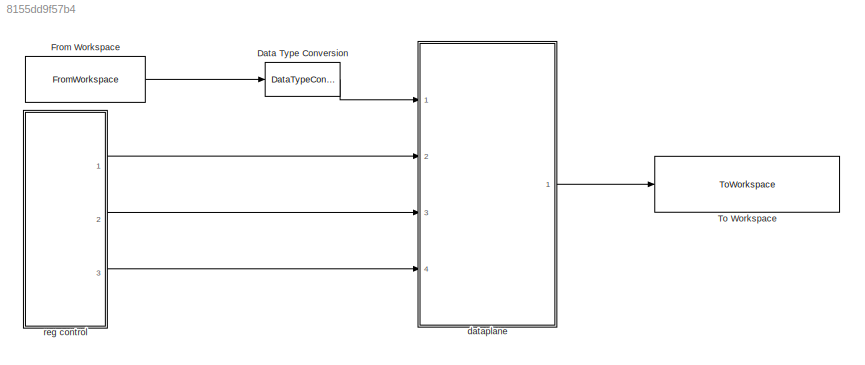
MODEL slx_8155dd9f57b4
KIND model
CONFIG AbsTol = auto
CONFIG EnableMultiTasking = off
CONFIG FixedStep = auto
CONFIG InitFcn = callback_init
CONFIG MaxStep = auto
CONFIG MinStep = auto
CONFIG RelTol = 1e-3
CONFIG SampleTimeConstraint = Unconstrained
CONFIG SolverName = VariableStepAuto
CONFIG StartTime = 0.0
CONFIG StopFcn = callback_stop
CONFIG StopTime = stop_time
BLOCK [DataTypeConversion] Data Type Conversion
  OutDataTypeStr = fixdt(1,mp.W_bits,mp.F_bits)
  RndMeth = Floor
  SaturateOnIntegerOverflow = off
BLOCK [FromWorkspace] From Workspace
  OutputAfterFinalValue = Holding final value
  SampleTime = Ts
  VariableName = mp.input_timeseries
BLOCK [ToWorkspace] To Workspace
  FixptAsFi = on
  MaxDataPoints = inf
  Ports = [1]
  SampleTime = -1
  SaveFormat = Timeseries
  VariableName = output_timeseries
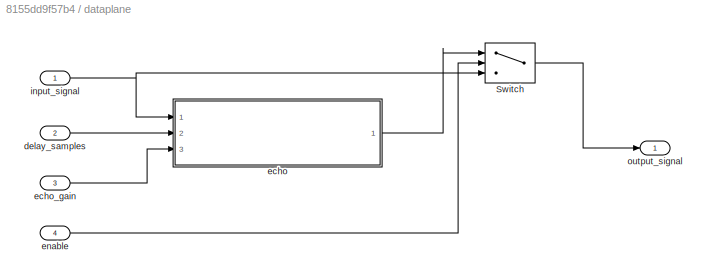
BLOCK [SubSystem] dataplane
  Ports = [4, 1]
  RequestExecContextInheritance = off
BLOCK [Switch] dataplane/Switch
  Criteria = u2 > Threshold
  InputSameDT = off
  SaturateOnIntegerOverflow = off
BLOCK [Inport] dataplane/delay_samples
  Port = 2
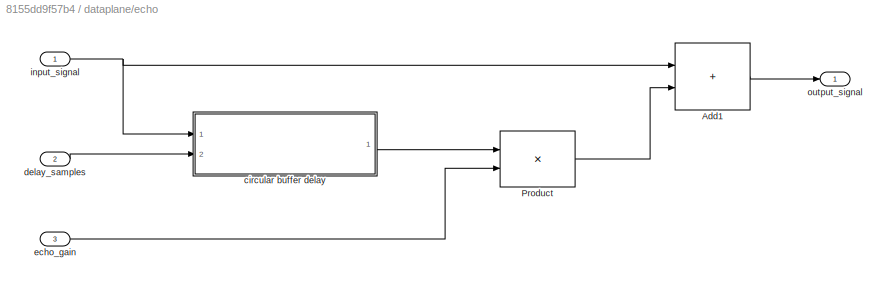
BLOCK [SubSystem] dataplane/echo
  Ports = [3, 1]
  RequestExecContextInheritance = off
BLOCK [Sum] dataplane/echo/Add1
  IconShape = rectangular
  OutDataTypeStr = Inherit: Same as first input
  Ports = [2, 1]
BLOCK [Product] dataplane/echo/Product
  OutDataTypeStr = Inherit: Same as first input
  Ports = [2, 1]
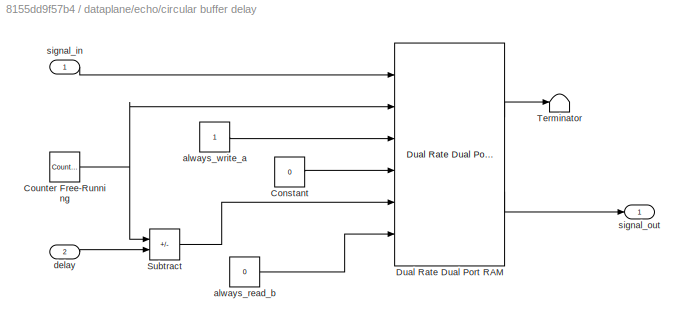
BLOCK [SubSystem] dataplane/echo/circular buffer delay
  Ports = [2, 1]
  RequestExecContextInheritance = off
BLOCK [Constant] dataplane/echo/circular buffer delay/Constant
  OutDataTypeStr = fixdt(1,mp.W_bits,mp.F_bits)
  SampleTime = mp.Ts
  Value = 0
BLOCK [Reference] dataplane/echo/circular buffer delay/Counter Free-Running  REF=simulink/Sources/Counter
Free-Running
  Ports = [0, 1]
  SourceBlock = simulink/Sources/Counter\nFree-Running
  SourceProductBaseCode = SL
  SourceType = Counter Free-Running
BLOCK [Reference] dataplane/echo/circular buffer delay/Dual Rate Dual Port RAM  REF=hdlsllib/HDL RAMs/Dual Rate Dual Port RAM
  Ports = [6, 2]
  SourceBlock = hdlsllib/HDL RAMs/Dual Rate Dual Port RAM
  SourceProductBaseCode = SL
  SourceType = Dual-rate dual-port RAM
BLOCK [Sum] dataplane/echo/circular buffer delay/Subtract
  IconShape = rectangular
  Inputs = +-
  OutDataTypeStr = Inherit: Same as first input
  Ports = [2, 1]
BLOCK [Terminator] dataplane/echo/circular buffer delay/Terminator
BLOCK [Constant] dataplane/echo/circular buffer delay/always_read_b
  OutDataTypeStr = boolean
  SampleTime = mp.Ts
  Value = 0
BLOCK [Constant] dataplane/echo/circular buffer delay/always_write_a
  OutDataTypeStr = boolean
  SampleTime = mp.Ts
BLOCK [Inport] dataplane/echo/circular buffer delay/delay
  Port = 2
BLOCK [Inport] dataplane/echo/circular buffer delay/signal_in
BLOCK [Outport] dataplane/echo/circular buffer delay/signal_out
BLOCK [Inport] dataplane/echo/delay_samples
  Port = 2
BLOCK [Inport] dataplane/echo/echo_gain
  Port = 3
BLOCK [Inport] dataplane/echo/input_signal
BLOCK [Outport] dataplane/echo/output_signal
BLOCK [Inport] dataplane/echo_gain
  Port = 3
BLOCK [Inport] dataplane/enable
  Port = 4
BLOCK [Inport] dataplane/input_signal
BLOCK [Outport] dataplane/output_signal
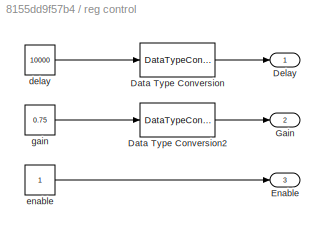
BLOCK [SubSystem] reg control
  Ports = [0, 3]
  RequestExecContextInheritance = off
BLOCK [DataTypeConversion] reg control/Data Type Conversion
  OutDataTypeStr = fixdt(0,mp.DPRAM1_address_size,0)
  RndMeth = Floor
  SaturateOnIntegerOverflow = off
BLOCK [DataTypeConversion] reg control/Data Type Conversion2
  OutDataTypeStr = fixdt(0,mp.W_gain,mp.F_gain)
  RndMeth = Floor
  SaturateOnIntegerOverflow = off
BLOCK [Outport] reg control/Delay
BLOCK [Outport] reg control/Enable
  Port = 3
BLOCK [Outport] reg control/Gain
  Port = 2
BLOCK [Constant] reg control/delay
  SampleTime = Ts
  Value = 10000
BLOCK [Constant] reg control/enable
  OutDataTypeStr = boolean
  SampleTime = Ts
BLOCK [Constant] reg control/gain
  SampleTime = Ts
  Value = 0.75
LINE Data Type Conversion:1 -> dataplane:1
LINE From Workspace:1 -> Data Type Conversion:1
LINE dataplane/Switch:1 -> dataplane/output_signal:1
LINE dataplane/delay_samples:1 -> dataplane/echo:2
LINE dataplane/echo/Add1:1 -> dataplane/echo/output_signal:1
LINE dataplane/echo/Product:1 -> dataplane/echo/Add1:2
LINE dataplane/echo/circular buffer delay/Constant:1 -> dataplane/echo/circular buffer delay/Dual Rate Dual Port RAM:4
NET dataplane/echo/circular buffer delay/Counter Free-Running:1 -> dataplane/echo/circular buffer delay/Dual Rate Dual Port RAM:2, dataplane/echo/circular buffer delay/Subtract:1
LINE dataplane/echo/circular buffer delay/Dual Rate Dual Port RAM:1 -> dataplane/echo/circular buffer delay/Terminator:1
LINE dataplane/echo/circular buffer delay/Dual Rate Dual Port RAM:2 -> dataplane/echo/circular buffer delay/signal_out:1
LINE dataplane/echo/circular buffer delay/Subtract:1 -> dataplane/echo/circular buffer delay/Dual Rate Dual Port RAM:5
LINE dataplane/echo/circular buffer delay/always_read_b:1 -> dataplane/echo/circular buffer delay/Dual Rate Dual Port RAM:6
LINE dataplane/echo/circular buffer delay/always_write_a:1 -> dataplane/echo/circular buffer delay/Dual Rate Dual Port RAM:3
LINE dataplane/echo/circular buffer delay/delay:1 -> dataplane/echo/circular buffer delay/Subtract:2
LINE dataplane/echo/circular buffer delay/signal_in:1 -> dataplane/echo/circular buffer delay/Dual Rate Dual Port RAM:1
LINE dataplane/echo/circular buffer delay:1 -> dataplane/echo/Product:1
LINE dataplane/echo/delay_samples:1 -> dataplane/echo/circular buffer delay:2
LINE dataplane/echo/echo_gain:1 -> dataplane/echo/Product:2
NET dataplane/echo/input_signal:1 -> dataplane/echo/Add1:1, dataplane/echo/circular buffer delay:1
LINE dataplane/echo:1 -> dataplane/Switch:1
LINE dataplane/echo_gain:1 -> dataplane/echo:3
LINE dataplane/enable:1 -> dataplane/Switch:2
NET dataplane/input_signal:1 -> dataplane/Switch:3, dataplane/echo:1
LINE dataplane:1 -> To Workspace:1
LINE reg control/Data Type Conversion2:1 -> reg control/Gain:1
LINE reg control/Data Type Conversion:1 -> reg control/Delay:1
LINE reg control/delay:1 -> reg control/Data Type Conversion:1
LINE reg control/enable:1 -> reg control/Enable:1
LINE reg control/gain:1 -> reg control/Data Type Conversion2:1
LINE reg control:1 -> dataplane:2
LINE reg control:2 -> dataplane:3
LINE reg control:3 -> dataplane:4
note: NET lines group one-source signal fan-out (src -> all destinations, sorted); 1:1 wires keep LINE
